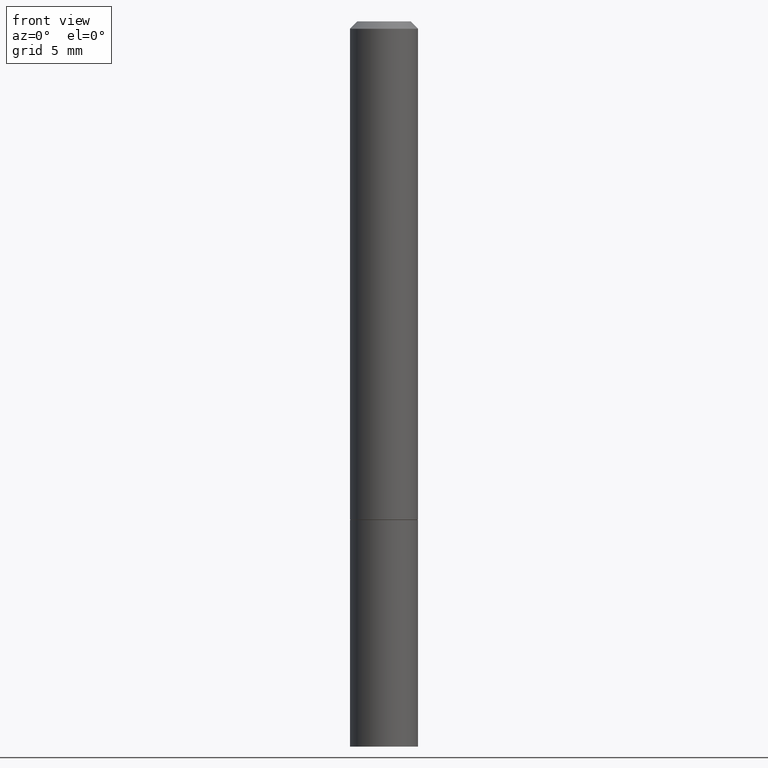
[diagram: clean part render]
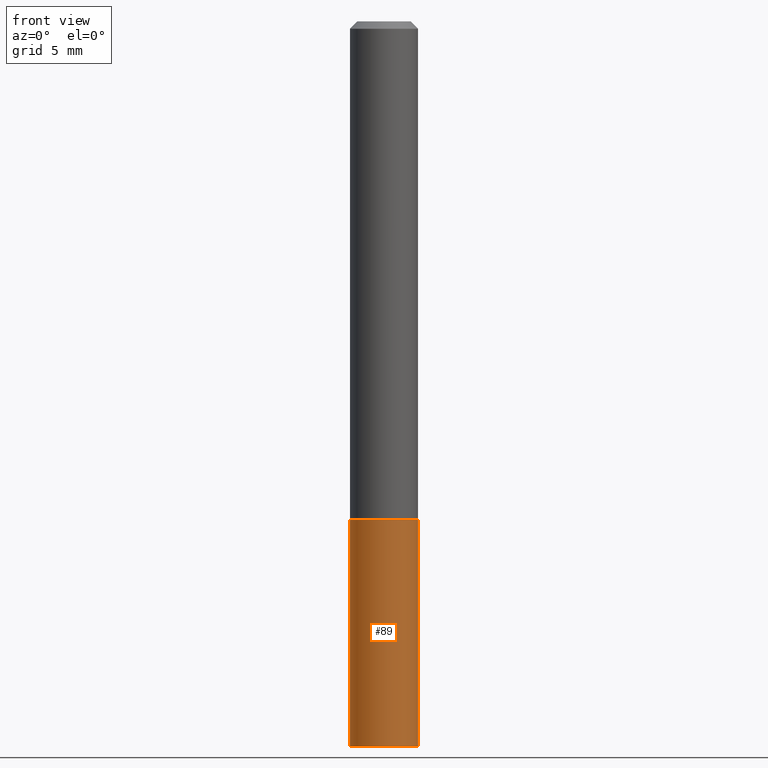
[diagram: same view with one face highlighted and labeled with its STEP entity id]
A machine part, front view. The second image highlights one B-rep face of the part: STEP entity #89.
In plain terms, the highlighted cylindrical surface (edge-blend (fillet) strip) has radius 2.3813 mm, axis along (-0, 0, 1).
Its self-contained STEP definition (entity closure, byte-faithful):
#4 = CYLINDRICAL_SURFACE ( 'NONE', #354, 0.09375000000000001388 ) ;
#7 = EDGE_CURVE ( 'NONE', #302, #10, #353, .T. ) ;
#10 = VERTEX_POINT ( 'NONE', #131 ) ;
#11 = DIRECTION ( 'NONE',  ( -2.445468806185136597E-29, 3.491481338843145583E-15, 1.000000000000000000 ) ) ;
#12 = ORIENTED_EDGE ( 'NONE', *, *, #7, .F. ) ;
#21 = LINE ( 'NONE', #231, #218 ) ;
#37 = EDGE_CURVE ( 'NONE', #310, #382, #390, .T. ) ;
#81 = DIRECTION ( 'NONE',  ( -2.445468806185136877E-29, 3.491481338843145188E-15, 1.000000000000000000 ) ) ;
#82 = DIRECTION ( 'NONE',  ( -2.445468806185136877E-29, 3.491481338843145188E-15, 1.000000000000000000 ) ) ;
#89 = ADVANCED_FACE ( 'NONE', ( #272 ), #4, .T. ) ;
#94 = ORIENTED_EDGE ( 'NONE', *, *, #37, .T. ) ;
#95 = DIRECTION ( 'NONE',  ( 1.000000000000000000, -6.982962677686265922E-15, 4.876176775795935793E-29 ) ) ;
#108 = CARTESIAN_POINT ( 'NONE',  ( -0.09375000000000001388, -5.225740944522714123E-15, -1.375000000000000000 ) ) ;
#123 = DIRECTION ( 'NONE',  ( 1.000000000000000000, -6.982962677686261189E-15, 0.000000000000000000 ) ) ;
#126 = CARTESIAN_POINT ( 'NONE',  ( 3.362519608504562260E-29, -4.800786840909324930E-15, -1.375000000000000000 ) ) ;
#131 = CARTESIAN_POINT ( 'NONE',  ( 0.09375000000000001388, -5.455439591942412434E-15, -1.375000000000000000 ) ) ;
#160 = DIRECTION ( 'NONE',  ( 1.000000000000000000, -6.982962677686261189E-15, 0.000000000000000000 ) ) ;
#168 = CARTESIAN_POINT ( 'NONE',  ( -0.09374999999999984734, -6.328309926653205239E-15, -2.000000000000000000 ) ) ;
#179 = ORIENTED_EDGE ( 'NONE', *, *, #314, .F. ) ;
#193 = LINE ( 'NONE', #259, #204 ) ;
#204 = VECTOR ( 'NONE', #82, 39.37007874015748143 ) ;
#217 = ORIENTED_EDGE ( 'NONE', *, *, #271, .T. ) ;
#218 = VECTOR ( 'NONE', #81, 39.37007874015748143 ) ;
#222 = DIRECTION ( 'NONE',  ( -2.445468806185136597E-29, 3.491481338843145583E-15, 1.000000000000000000 ) ) ;
#231 = CARTESIAN_POINT ( 'NONE',  ( -0.09375000000000001388, 6.661338147750940229E-16, -4.611501647113973995E-30 ) ) ;
#238 = AXIS2_PLACEMENT_3D ( 'NONE', #126, #222, #123 ) ;
#244 = CARTESIAN_POINT ( 'NONE',  ( 0.000000000000000000, 0.000000000000000000, 0.000000000000000000 ) ) ;
#247 = CARTESIAN_POINT ( 'NONE',  ( 4.890937612370273194E-29, -6.982962677686291165E-15, -2.000000000000000000 ) ) ;
#259 = CARTESIAN_POINT ( 'NONE',  ( 0.09375000000000001388, -6.546527510330875041E-16, 4.571415727308690506E-30 ) ) ;
#271 = EDGE_CURVE ( 'NONE', #382, #10, #193, .T. ) ;
#272 = FACE_OUTER_BOUND ( 'NONE', #278, .T. ) ;
#278 = EDGE_LOOP ( 'NONE', ( #179, #94, #217, #12 ) ) ;
#302 = VERTEX_POINT ( 'NONE', #108 ) ;
#310 = VERTEX_POINT ( 'NONE', #168 ) ;
#314 = EDGE_CURVE ( 'NONE', #310, #302, #21, .T. ) ;
#340 = AXIS2_PLACEMENT_3D ( 'NONE', #247, #11, #160 ) ;
#353 = CIRCLE ( 'NONE', #238, 0.09375000000000001388 ) ;
#354 = AXIS2_PLACEMENT_3D ( 'NONE', #244, #360, #95 ) ;
#360 = DIRECTION ( 'NONE',  ( -2.445468806185136597E-29, 3.491481338843145583E-15, 1.000000000000000000 ) ) ;
#382 = VERTEX_POINT ( 'NONE', #388 ) ;
#388 = CARTESIAN_POINT ( 'NONE',  ( 0.09374999999999984734, -7.626134364977371460E-15, -2.000000000000000000 ) ) ;
#390 = CIRCLE ( 'NONE', #340, 0.09375000000000001388 ) ;